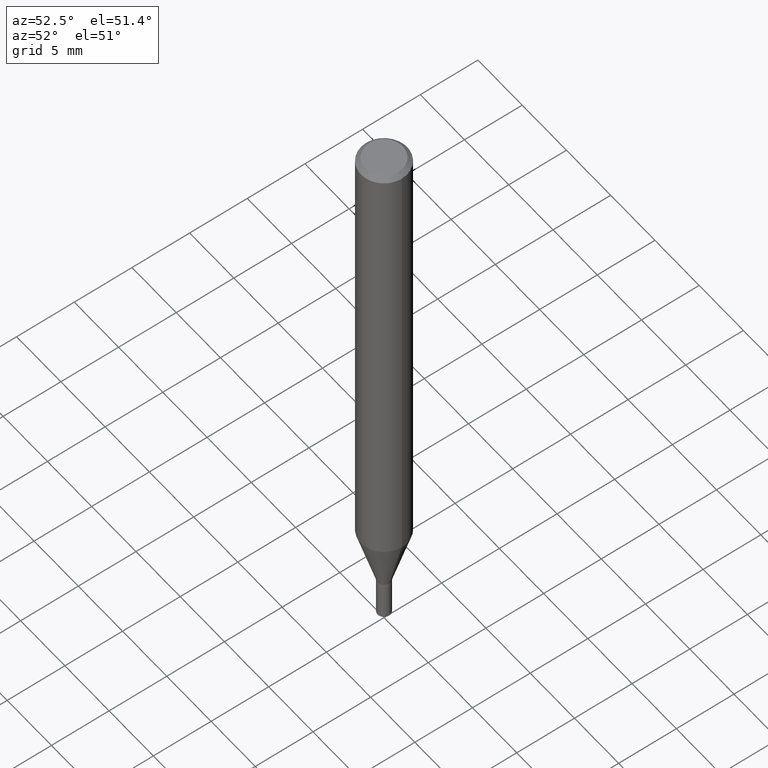
[diagram: clean part render]
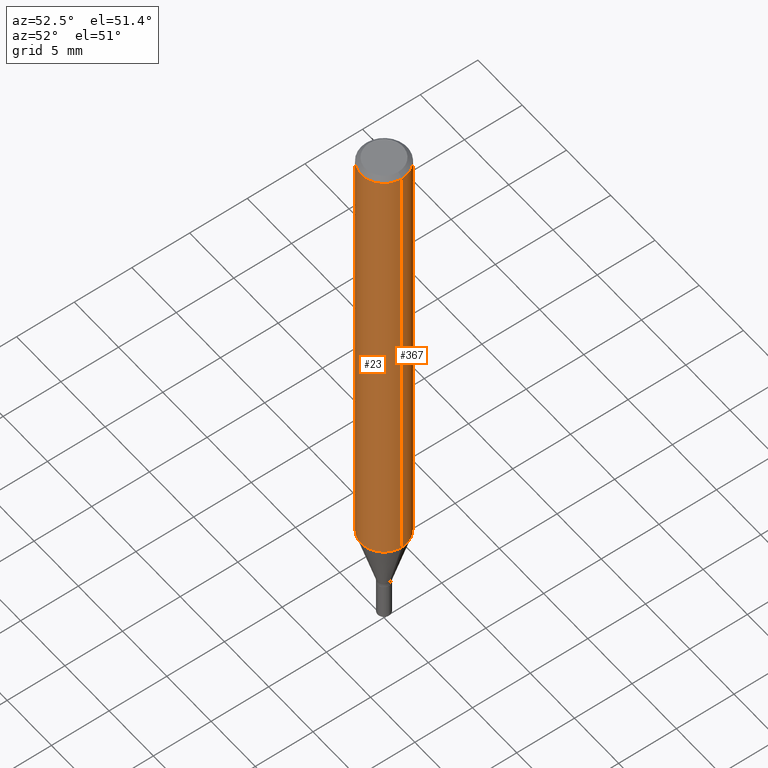
[diagram: same view with one multi-face feature highlighted, each face labeled with its STEP entity id]
A machine part, auxiliary view. The highlighted faces form ONE feature: a constant-radius fillet chain: 2 tangent blend faces with common blend radius 2.0002 mm. The faces share edges in the B-rep.
Their STEP definitions:
[1] entity #367 (Cylinder):
#2 = DIRECTION ( 'NONE',  ( -2.445468806185136877E-29, 3.491481338843145188E-15, 1.000000000000000000 ) ) ;
#3 = VERTEX_POINT ( 'NONE', #408 ) ;
#18 = AXIS2_PLACEMENT_3D ( 'NONE', #405, #430, #36 ) ;
#36 = DIRECTION ( 'NONE',  ( 1.000000000000000000, -6.982962677686265922E-15, 4.876176775795935232E-29 ) ) ;
#49 = CARTESIAN_POINT ( 'NONE',  ( 0.07875000000000001443, -6.190046912603718484E-15, -1.615399898887819097 ) ) ;
#65 = CARTESIAN_POINT ( 'NONE',  ( 0.07875000000000000056, -6.022805309504406221E-16, -0.01499999999999999944 ) ) ;
#69 = VERTEX_POINT ( 'NONE', #49 ) ;
#76 = CARTESIAN_POINT ( 'NONE',  ( 0.07875000000000000056, -5.499083108677934443E-16, 3.839989210939299016E-30 ) ) ;
#78 = VECTOR ( 'NONE', #250, 39.37007874015748143 ) ;
#96 = DIRECTION ( 'NONE',  ( -2.445468806185136597E-29, 3.491481338843145583E-15, 1.000000000000000000 ) ) ;
#101 = CARTESIAN_POINT ( 'NONE',  ( -0.07875000000000000056, 5.595524044110789003E-16, -3.873661383575737792E-30 ) ) ;
#113 = CYLINDRICAL_SURFACE ( 'NONE', #18, 0.07875000000000000056 ) ;
#137 = DIRECTION ( 'NONE',  ( 1.000000000000000000, -6.982962677686261977E-15, 0.000000000000000000 ) ) ;
#138 = EDGE_CURVE ( 'NONE', #3, #376, #291, .T. ) ;
#139 = CARTESIAN_POINT ( 'NONE',  ( 3.950410062244785597E-29, -5.640138601735924349E-15, -1.615399898887819097 ) ) ;
#152 = VECTOR ( 'NONE', #2, 39.37007874015748143 ) ;
#155 = DIRECTION ( 'NONE',  ( 1.000000000000000000, -6.982962677686265922E-15, 0.000000000000000000 ) ) ;
#185 = VERTEX_POINT ( 'NONE', #65 ) ;
#223 = DIRECTION ( 'NONE',  ( -2.445468806185136597E-29, 3.491481338843145583E-15, 1.000000000000000000 ) ) ;
#226 = ORIENTED_EDGE ( 'NONE', *, *, #384, .F. ) ;
#237 = EDGE_LOOP ( 'NONE', ( #437, #333, #226, #369 ) ) ;
#250 = DIRECTION ( 'NONE',  ( -2.445468806185136877E-29, 3.491481338843145188E-15, 1.000000000000000000 ) ) ;
#255 = CARTESIAN_POINT ( 'NONE',  ( 3.668203209277705088E-31, -5.237222008264718399E-17, -0.01499999999999999944 ) ) ;
#257 = CARTESIAN_POINT ( 'NONE',  ( -0.07875000000000000056, -2.286703006498207110E-15, -0.01499999999999999944 ) ) ;
#263 = EDGE_CURVE ( 'NONE', #69, #3, #425, .T. ) ;
#291 = LINE ( 'NONE', #101, #78 ) ;
#311 = AXIS2_PLACEMENT_3D ( 'NONE', #255, #223, #155 ) ;
#333 = ORIENTED_EDGE ( 'NONE', *, *, #138, .T. ) ;
#356 = EDGE_CURVE ( 'NONE', #69, #185, #365, .T. ) ;
#365 = LINE ( 'NONE', #76, #152 ) ;
#367 = ADVANCED_FACE ( 'NONE', ( #375 ), #113, .T. ) ;
#369 = ORIENTED_EDGE ( 'NONE', *, *, #356, .F. ) ;
#375 = FACE_OUTER_BOUND ( 'NONE', #237, .T. ) ;
#376 = VERTEX_POINT ( 'NONE', #257 ) ;
#381 = CIRCLE ( 'NONE', #311, 0.07875000000000000056 ) ;
#384 = EDGE_CURVE ( 'NONE', #185, #376, #381, .T. ) ;
#391 = AXIS2_PLACEMENT_3D ( 'NONE', #139, #96, #137 ) ;
#405 = CARTESIAN_POINT ( 'NONE',  ( 0.000000000000000000, 0.000000000000000000, 0.000000000000000000 ) ) ;
#408 = CARTESIAN_POINT ( 'NONE',  ( -0.07875000000000001443, -5.080586197324846336E-15, -1.615399898887819097 ) ) ;
#425 = CIRCLE ( 'NONE', #391, 0.07875000000000000056 ) ;
#430 = DIRECTION ( 'NONE',  ( -2.445468806185136597E-29, 3.491481338843145583E-15, 1.000000000000000000 ) ) ;
#437 = ORIENTED_EDGE ( 'NONE', *, *, #263, .T. ) ;
[2] entity #23 (Cylinder):
#2 = DIRECTION ( 'NONE',  ( -2.445468806185136877E-29, 3.491481338843145188E-15, 1.000000000000000000 ) ) ;
#3 = VERTEX_POINT ( 'NONE', #408 ) ;
#15 = CYLINDRICAL_SURFACE ( 'NONE', #464, 0.07875000000000000056 ) ;
#23 = ADVANCED_FACE ( 'NONE', ( #130 ), #15, .T. ) ;
#35 = CIRCLE ( 'NONE', #374, 0.07875000000000000056 ) ;
#49 = CARTESIAN_POINT ( 'NONE',  ( 0.07875000000000001443, -6.190046912603718484E-15, -1.615399898887819097 ) ) ;
#50 = AXIS2_PLACEMENT_3D ( 'NONE', #386, #64, #387 ) ;
#64 = DIRECTION ( 'NONE',  ( -2.445468806185136597E-29, 3.491481338843145583E-15, 1.000000000000000000 ) ) ;
#65 = CARTESIAN_POINT ( 'NONE',  ( 0.07875000000000000056, -6.022805309504406221E-16, -0.01499999999999999944 ) ) ;
#69 = VERTEX_POINT ( 'NONE', #49 ) ;
#73 = ORIENTED_EDGE ( 'NONE', *, *, #356, .T. ) ;
#76 = CARTESIAN_POINT ( 'NONE',  ( 0.07875000000000000056, -5.499083108677934443E-16, 3.839989210939299016E-30 ) ) ;
#78 = VECTOR ( 'NONE', #250, 39.37007874015748143 ) ;
#101 = CARTESIAN_POINT ( 'NONE',  ( -0.07875000000000000056, 5.595524044110789003E-16, -3.873661383575737792E-30 ) ) ;
#130 = FACE_OUTER_BOUND ( 'NONE', #351, .T. ) ;
#138 = EDGE_CURVE ( 'NONE', #3, #376, #291, .T. ) ;
#141 = DIRECTION ( 'NONE',  ( 1.000000000000000000, -6.982962677686265922E-15, 0.000000000000000000 ) ) ;
#152 = VECTOR ( 'NONE', #2, 39.37007874015748143 ) ;
#162 = CARTESIAN_POINT ( 'NONE',  ( 0.000000000000000000, 0.000000000000000000, 0.000000000000000000 ) ) ;
#182 = CIRCLE ( 'NONE', #50, 0.07875000000000000056 ) ;
#185 = VERTEX_POINT ( 'NONE', #65 ) ;
#222 = EDGE_CURVE ( 'NONE', #3, #69, #182, .T. ) ;
#250 = DIRECTION ( 'NONE',  ( -2.445468806185136877E-29, 3.491481338843145188E-15, 1.000000000000000000 ) ) ;
#256 = EDGE_CURVE ( 'NONE', #376, #185, #35, .T. ) ;
#257 = CARTESIAN_POINT ( 'NONE',  ( -0.07875000000000000056, -2.286703006498207110E-15, -0.01499999999999999944 ) ) ;
#291 = LINE ( 'NONE', #101, #78 ) ;
#319 = ORIENTED_EDGE ( 'NONE', *, *, #256, .F. ) ;
#321 = DIRECTION ( 'NONE',  ( -2.445468806185136597E-29, 3.491481338843145583E-15, 1.000000000000000000 ) ) ;
#328 = CARTESIAN_POINT ( 'NONE',  ( 3.668203209277705088E-31, -5.237222008264718399E-17, -0.01499999999999999944 ) ) ;
#351 = EDGE_LOOP ( 'NONE', ( #406, #402, #73, #319 ) ) ;
#356 = EDGE_CURVE ( 'NONE', #69, #185, #365, .T. ) ;
#365 = LINE ( 'NONE', #76, #152 ) ;
#374 = AXIS2_PLACEMENT_3D ( 'NONE', #328, #458, #141 ) ;
#376 = VERTEX_POINT ( 'NONE', #257 ) ;
#386 = CARTESIAN_POINT ( 'NONE',  ( 3.950410062244785597E-29, -5.640138601735924349E-15, -1.615399898887819097 ) ) ;
#387 = DIRECTION ( 'NONE',  ( 1.000000000000000000, -6.982962677686261977E-15, 0.000000000000000000 ) ) ;
#402 = ORIENTED_EDGE ( 'NONE', *, *, #222, .T. ) ;
#406 = ORIENTED_EDGE ( 'NONE', *, *, #138, .F. ) ;
#408 = CARTESIAN_POINT ( 'NONE',  ( -0.07875000000000001443, -5.080586197324846336E-15, -1.615399898887819097 ) ) ;
#442 = DIRECTION ( 'NONE',  ( 1.000000000000000000, -6.982962677686265922E-15, 4.876176775795935232E-29 ) ) ;
#458 = DIRECTION ( 'NONE',  ( -2.445468806185136597E-29, 3.491481338843145583E-15, 1.000000000000000000 ) ) ;
#464 = AXIS2_PLACEMENT_3D ( 'NONE', #162, #321, #442 ) ;